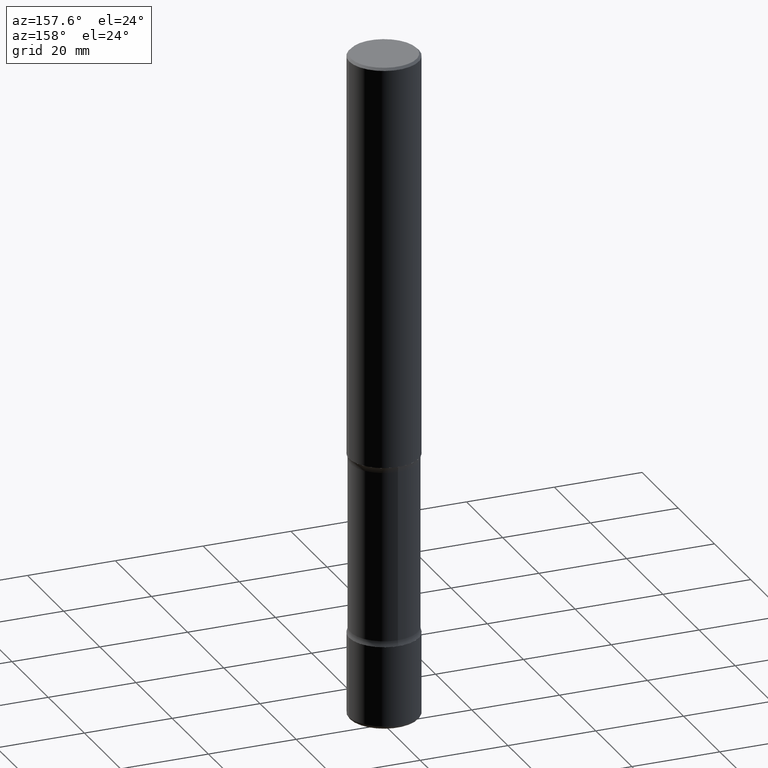
[diagram: clean part render]
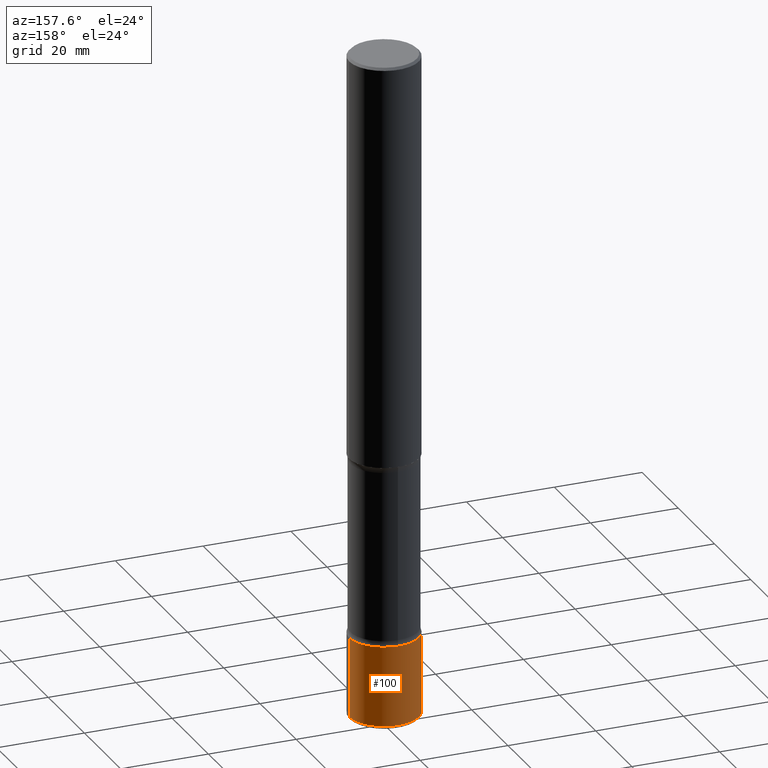
[diagram: same view with one face highlighted and labeled with its STEP entity id]
A machine part, auxiliary view. The second image highlights one B-rep face of the part: STEP entity #100.
In plain terms, the highlighted cylindrical surface (partial cylindrical patch) has radius 7.9375 mm, axis along (-0, 0, 1).
Its self-contained STEP definition (entity closure, byte-faithful):
#8 = DIRECTION ( 'NONE',  ( -2.445468806185136877E-29, 3.491481338843145188E-15, 1.000000000000000000 ) ) ;
#11 = ORIENTED_EDGE ( 'NONE', *, *, #364, .F. ) ;
#18 = DIRECTION ( 'NONE',  ( -2.445468806185136597E-29, 3.491481338843145583E-15, 1.000000000000000000 ) ) ;
#28 = CARTESIAN_POINT ( 'NONE',  ( -0.3125000000000001665, 2.220446049250314264E-15, -1.537167215704658792E-29 ) ) ;
#73 = EDGE_CURVE ( 'NONE', #149, #459, #178, .T. ) ;
#79 = CARTESIAN_POINT ( 'NONE',  ( 0.3125000000000002220, -2.302631942967053926E-14, -5.969999999999999751 ) ) ;
#95 = VECTOR ( 'NONE', #543, 39.37007874015748143 ) ;
#100 = ADVANCED_FACE ( 'NONE', ( #509 ), #435, .T. ) ;
#131 = DIRECTION ( 'NONE',  ( 1.000000000000000000, -6.982962677686266711E-15, 4.876176775795935232E-29 ) ) ;
#134 = ORIENTED_EDGE ( 'NONE', *, *, #319, .T. ) ;
#138 = CIRCLE ( 'NONE', #318, 0.3125000000000001665 ) ;
#143 = VERTEX_POINT ( 'NONE', #403 ) ;
#149 = VERTEX_POINT ( 'NONE', #79 ) ;
#178 = LINE ( 'NONE', #355, #447 ) ;
#198 = VERTEX_POINT ( 'NONE', #218 ) ;
#203 = LINE ( 'NONE', #28, #95 ) ;
#218 = CARTESIAN_POINT ( 'NONE',  ( -0.3125000000000001665, -1.736676426165973636E-14, -5.250000000000000888 ) ) ;
#231 = EDGE_CURVE ( 'NONE', #143, #198, #203, .T. ) ;
#249 = EDGE_LOOP ( 'NONE', ( #134, #322, #11, #538 ) ) ;
#266 = AXIS2_PLACEMENT_3D ( 'NONE', #290, #303, #470 ) ;
#290 = CARTESIAN_POINT ( 'NONE',  ( 1.459944877292526494E-28, -2.084414359289357934E-14, -5.969999999999999751 ) ) ;
#303 = DIRECTION ( 'NONE',  ( -2.445468806185136597E-29, 3.491481338843145583E-15, 1.000000000000000000 ) ) ;
#314 = CARTESIAN_POINT ( 'NONE',  ( 0.3125000000000001665, -2.051245286570347946E-14, -5.250000000000000888 ) ) ;
#318 = AXIS2_PLACEMENT_3D ( 'NONE', #471, #18, #410 ) ;
#319 = EDGE_CURVE ( 'NONE', #149, #143, #500, .T. ) ;
#322 = ORIENTED_EDGE ( 'NONE', *, *, #231, .T. ) ;
#350 = AXIS2_PLACEMENT_3D ( 'NONE', #466, #392, #131 ) ;
#355 = CARTESIAN_POINT ( 'NONE',  ( 0.3125000000000001665, -2.182175836776959530E-15, 1.523805242436230636E-29 ) ) ;
#364 = EDGE_CURVE ( 'NONE', #459, #198, #138, .T. ) ;
#392 = DIRECTION ( 'NONE',  ( -2.445468806185136597E-29, 3.491481338843145583E-15, 1.000000000000000000 ) ) ;
#403 = CARTESIAN_POINT ( 'NONE',  ( -0.3125000000000002220, -1.862369754364326626E-14, -5.969999999999999751 ) ) ;
#410 = DIRECTION ( 'NONE',  ( 1.000000000000000000, -6.982962677686271444E-15, 0.000000000000000000 ) ) ;
#435 = CYLINDRICAL_SURFACE ( 'NONE', #350, 0.3125000000000001665 ) ;
#447 = VECTOR ( 'NONE', #8, 39.37007874015748143 ) ;
#459 = VERTEX_POINT ( 'NONE', #314 ) ;
#466 = CARTESIAN_POINT ( 'NONE',  ( 0.000000000000000000, 0.000000000000000000, 0.000000000000000000 ) ) ;
#470 = DIRECTION ( 'NONE',  ( 1.000000000000000000, -6.982962677686261977E-15, 0.000000000000000000 ) ) ;
#471 = CARTESIAN_POINT ( 'NONE',  ( 1.283871123247196938E-28, -1.833027702892651638E-14, -5.250000000000000888 ) ) ;
#500 = CIRCLE ( 'NONE', #266, 0.3125000000000000555 ) ;
#509 = FACE_OUTER_BOUND ( 'NONE', #249, .T. ) ;
#538 = ORIENTED_EDGE ( 'NONE', *, *, #73, .F. ) ;
#543 = DIRECTION ( 'NONE',  ( -2.445468806185136877E-29, 3.491481338843145188E-15, 1.000000000000000000 ) ) ;